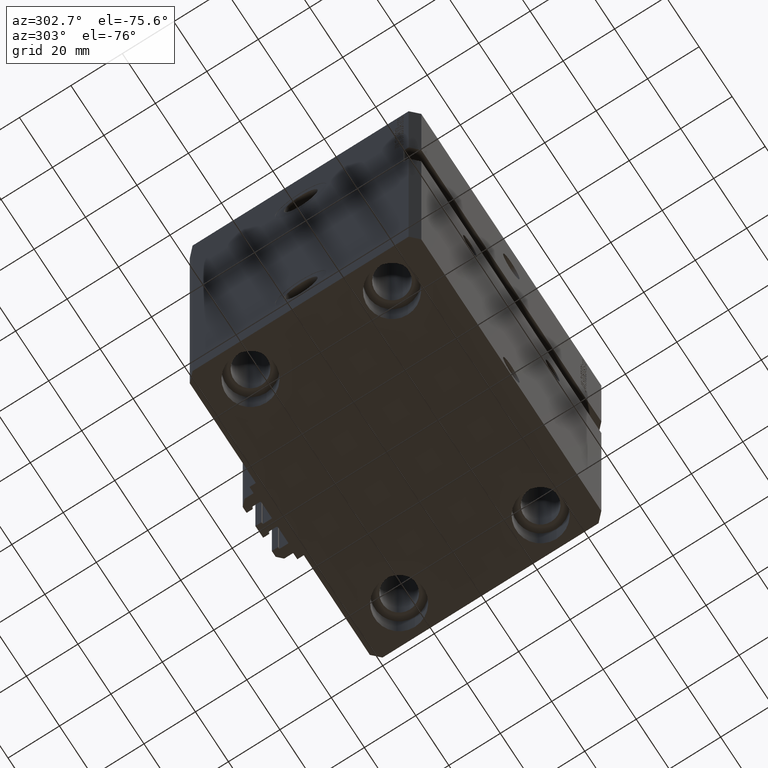
[diagram: clean part render]
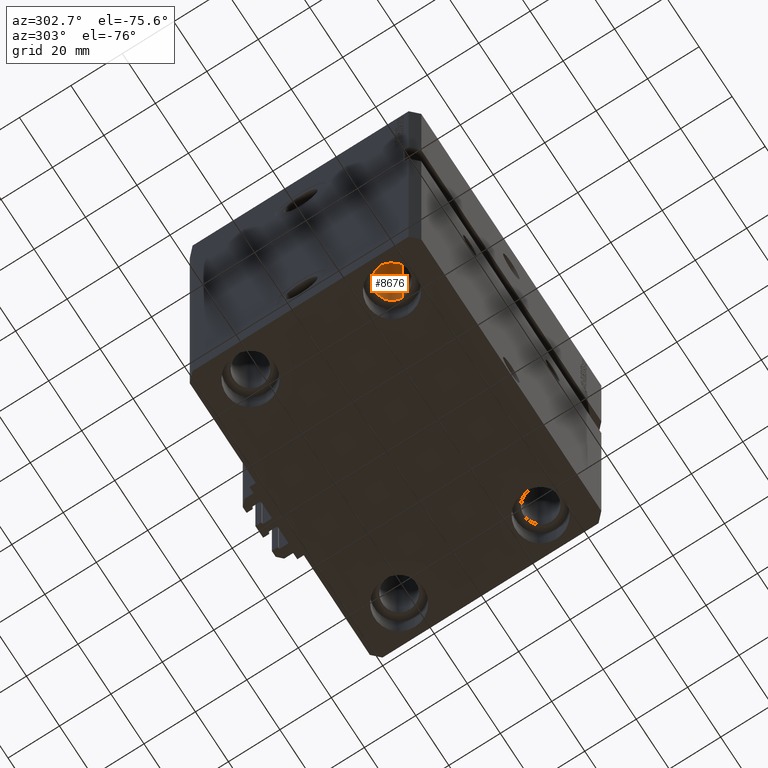
[diagram: same view with one face highlighted and labeled with its STEP entity id]
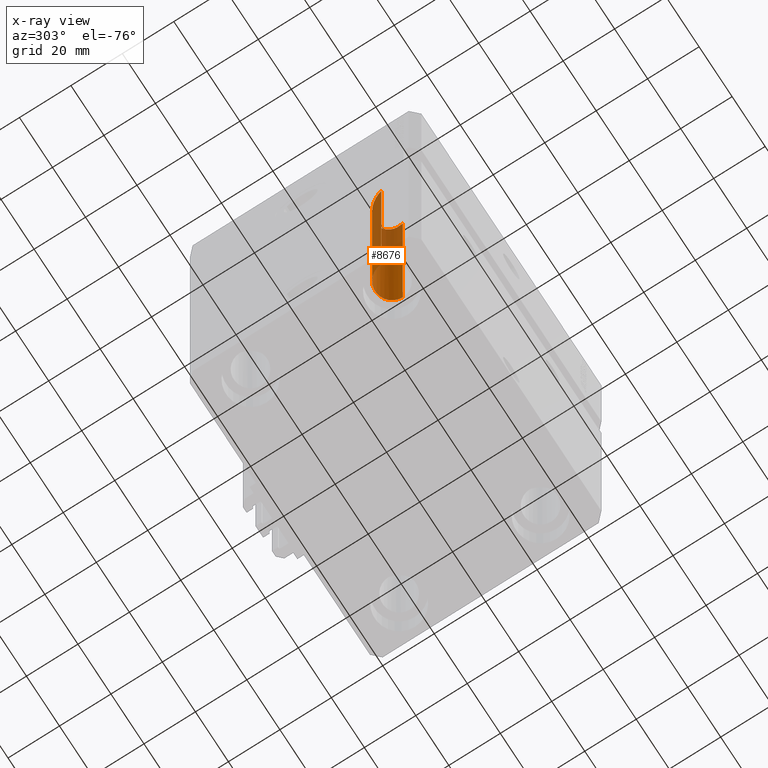
[diagram: x-ray of the same camera — body ghosted, the highlighted face saturated]
A machine part, auxiliary view. The second image highlights one B-rep face of the part: STEP entity #8676.
The next image is the same camera in x-ray: the body ghosted, the highlighted face saturated — about 55% of this face is hidden behind the body in this view.
In plain terms, the highlighted cylindrical surface (edge-blend (fillet) strip) has radius 6.5 mm, axis along (0, 0, 1).
Its self-contained STEP definition (entity closure, byte-faithful):
#122 = EDGE_CURVE ( 'NONE', #23891, #33667, #12037, .T. ) ;
#1356 = CARTESIAN_POINT ( 'NONE',  ( -38.49999999999999289, -27.49999999999999289, -55.00000000000002132 ) ) ;
#1532 = FACE_OUTER_BOUND ( 'NONE', #17484, .T. ) ;
#3145 = EDGE_CURVE ( 'NONE', #33496, #36544, #15505, .T. ) ;
#4837 = CARTESIAN_POINT ( 'NONE',  ( -51.49999999999999289, -27.49999999999999289, -55.00000000000002132 ) ) ;
#6879 = AXIS2_PLACEMENT_3D ( 'NONE', #31918, #24684, #28180 ) ;
#7980 = ORIENTED_EDGE ( 'NONE', *, *, #17953, .T. ) ;
#8676 = ADVANCED_FACE ( 'NONE', ( #1532 ), #16699, .F. ) ;
#11509 = CARTESIAN_POINT ( 'NONE',  ( -38.50000000000000000, -27.49999999999999645, -165.0000000000000000 ) ) ;
#12037 = CIRCLE ( 'NONE', #19993, 6.499999999999999112 ) ;
#12067 = CARTESIAN_POINT ( 'NONE',  ( -38.49999999999999289, -14.49999999999999822, -68.00000000000001421 ) ) ;
#15505 =( BOUNDED_CURVE ( )  B_SPLINE_CURVE ( 3, ( #1356, #12067, #34981, #4837 ),
 .UNSPECIFIED., .F., .T. ) 
 B_SPLINE_CURVE_WITH_KNOTS ( ( 4, 4 ),
 ( 1.570796326794896558, 4.712388980384689674 ),
 .UNSPECIFIED. ) 
 CURVE ( )  GEOMETRIC_REPRESENTATION_ITEM ( )  RATIONAL_B_SPLINE_CURVE ( ( 1.000000000000000000, 0.3333333333333333703, 0.3333333333333333703, 1.000000000000000000 ) ) 
 REPRESENTATION_ITEM ( '' )  );
#15805 = DIRECTION ( 'NONE',  ( -1.000000000000000000, 0.000000000000000000, 0.000000000000000000 ) ) ;
#16202 = ORIENTED_EDGE ( 'NONE', *, *, #3145, .T. ) ;
#16699 = CYLINDRICAL_SURFACE ( 'NONE', #6879, 6.499999999999999112 ) ;
#17484 = EDGE_LOOP ( 'NONE', ( #47579, #36670, #7980, #16202 ) ) ;
#17953 = EDGE_CURVE ( 'NONE', #33667, #33496, #45635, .T. ) ;
#18433 = CARTESIAN_POINT ( 'NONE',  ( -38.49999999999999289, -27.49999999999999289, -55.00000000000002132 ) ) ;
#19993 = AXIS2_PLACEMENT_3D ( 'NONE', #27279, #23555, #15805 ) ;
#20698 = DIRECTION ( 'NONE',  ( -0.000000000000000000, -0.000000000000000000, 1.000000000000000000 ) ) ;
#23555 = DIRECTION ( 'NONE',  ( 0.000000000000000000, 0.000000000000000000, -1.000000000000000000 ) ) ;
#23891 = VERTEX_POINT ( 'NONE', #36830 ) ;
#24684 = DIRECTION ( 'NONE',  ( -0.000000000000000000, -0.000000000000000000, 1.000000000000000000 ) ) ;
#27279 = CARTESIAN_POINT ( 'NONE',  ( -45.00000000000000000, -27.49999999999999645, -152.0000000000000000 ) ) ;
#28180 = DIRECTION ( 'NONE',  ( 1.000000000000000000, 0.000000000000000000, 0.000000000000000000 ) ) ;
#31918 = CARTESIAN_POINT ( 'NONE',  ( -45.00000000000000000, -27.49999999999999645, -165.0000000000000000 ) ) ;
#33496 = VERTEX_POINT ( 'NONE', #18433 ) ;
#33667 = VERTEX_POINT ( 'NONE', #38862 ) ;
#34981 = CARTESIAN_POINT ( 'NONE',  ( -51.50000000000000000, -14.49999999999999822, -68.00000000000001421 ) ) ;
#36544 = VERTEX_POINT ( 'NONE', #37533 ) ;
#36670 = ORIENTED_EDGE ( 'NONE', *, *, #122, .T. ) ;
#36830 = CARTESIAN_POINT ( 'NONE',  ( -51.50000000000000000, -27.49999999999999645, -152.0000000000000000 ) ) ;
#37533 = CARTESIAN_POINT ( 'NONE',  ( -51.49999999999999289, -27.49999999999999289, -55.00000000000002132 ) ) ;
#38862 = CARTESIAN_POINT ( 'NONE',  ( -38.50000000000000000, -27.49999999999999645, -152.0000000000000000 ) ) ;
#40272 = EDGE_CURVE ( 'NONE', #23891, #36544, #44100, .T. ) ;
#41567 = VECTOR ( 'NONE', #20698, 1000.000000000000000 ) ;
#42135 = DIRECTION ( 'NONE',  ( -0.000000000000000000, -0.000000000000000000, 1.000000000000000000 ) ) ;
#43771 = VECTOR ( 'NONE', #42135, 1000.000000000000000 ) ;
#43843 = CARTESIAN_POINT ( 'NONE',  ( -51.50000000000000000, -27.49999999999999645, -165.0000000000000000 ) ) ;
#44100 = LINE ( 'NONE', #43843, #41567 ) ;
#45635 = LINE ( 'NONE', #11509, #43771 ) ;
#47579 = ORIENTED_EDGE ( 'NONE', *, *, #40272, .F. ) ;